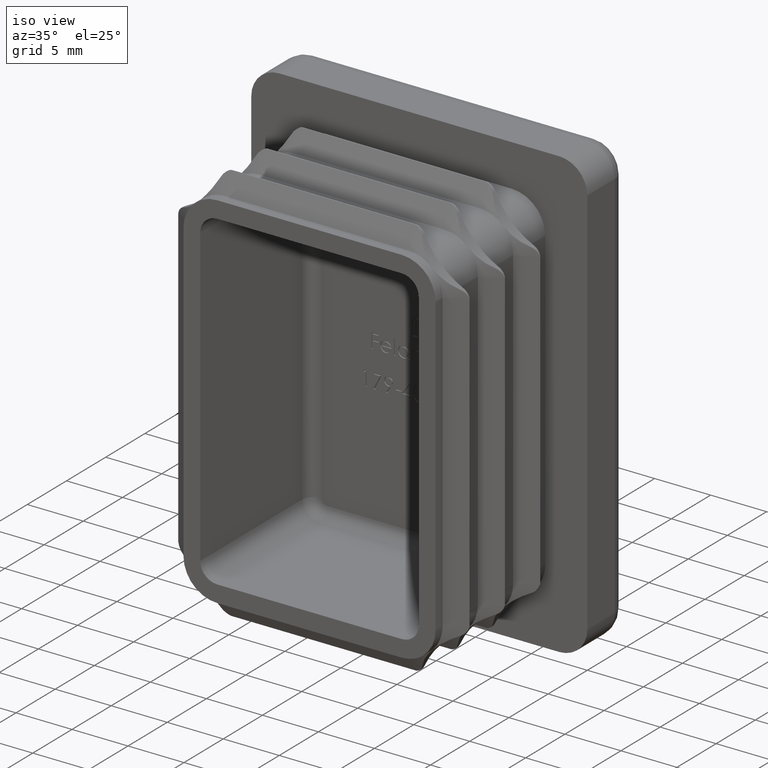
[diagram: clean part render]
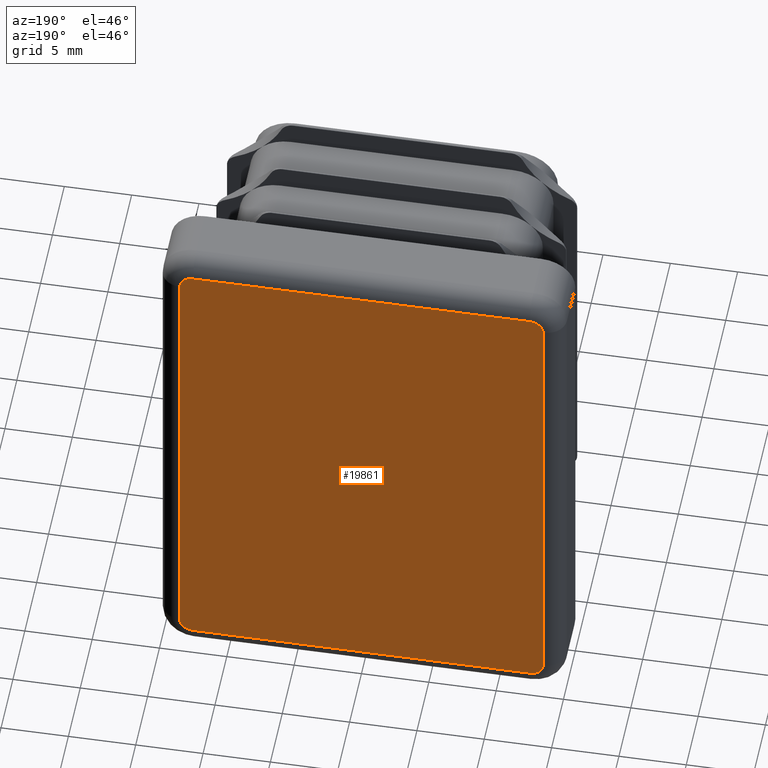
[diagram: tour spotlight — one face highlighted and labeled with its STEP entity id]
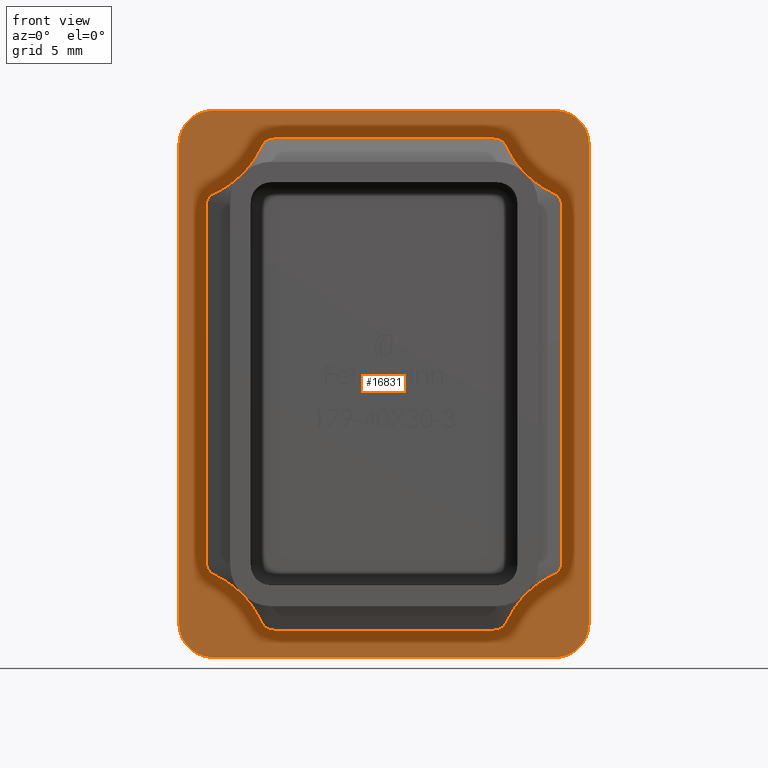
[diagram: tour spotlight — one face highlighted and labeled with its STEP entity id]
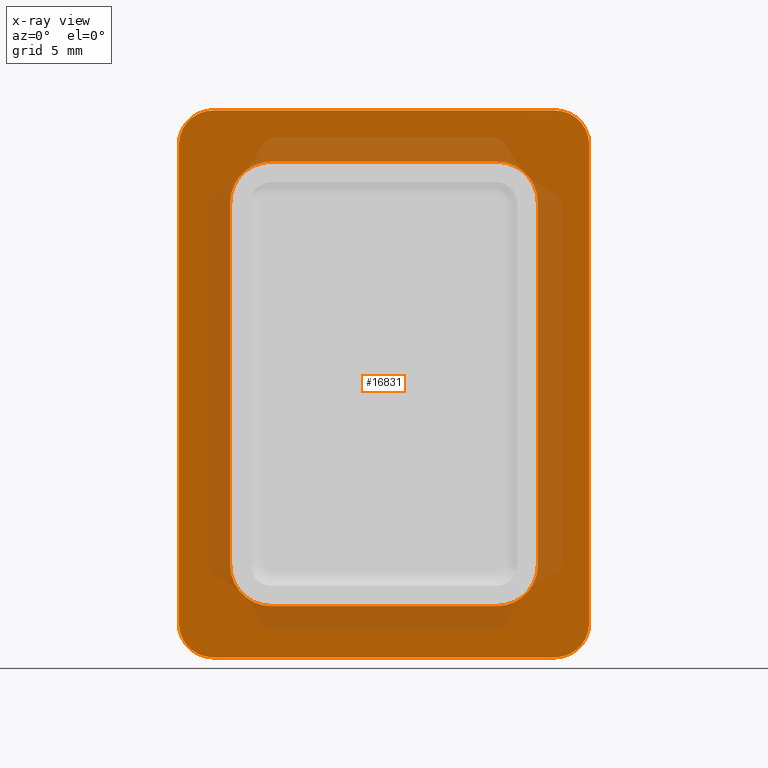
[diagram: x-ray of the same camera — body ghosted, this tour face saturated]
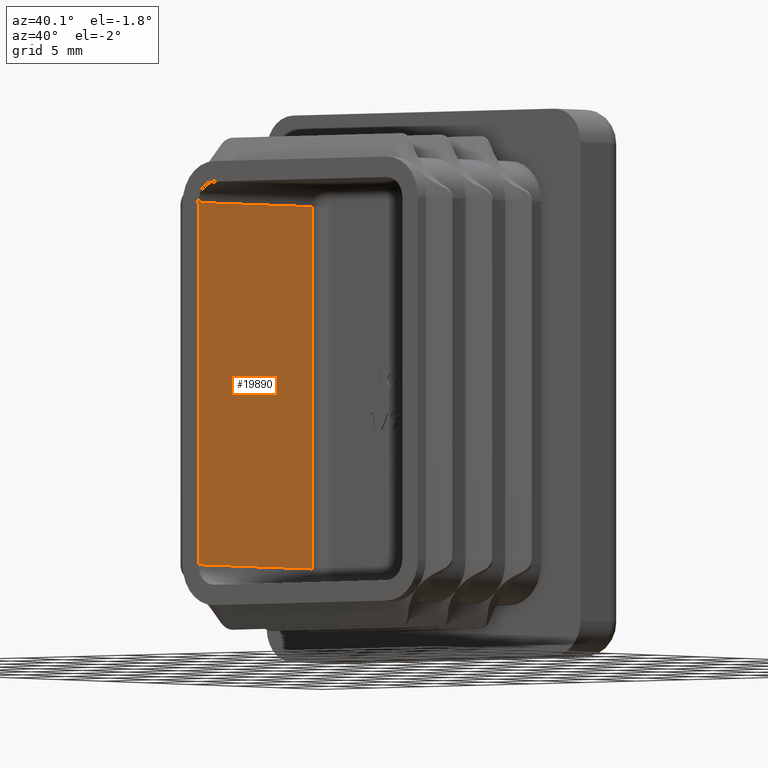
[diagram: tour spotlight — one face highlighted and labeled with its STEP entity id]
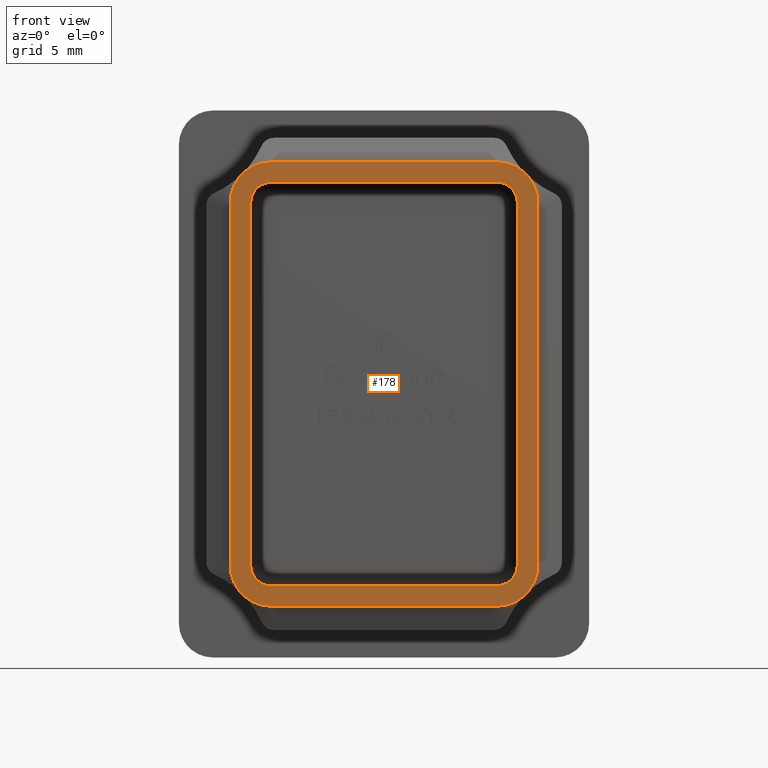
[diagram: tour spotlight — one face highlighted and labeled with its STEP entity id]
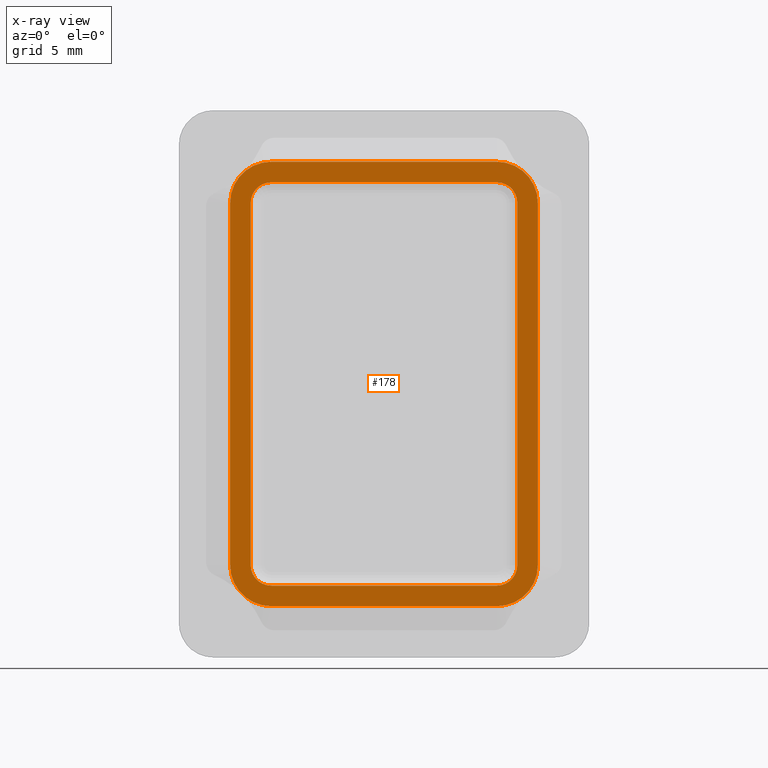
[diagram: x-ray of the same camera — body ghosted, this tour face saturated]
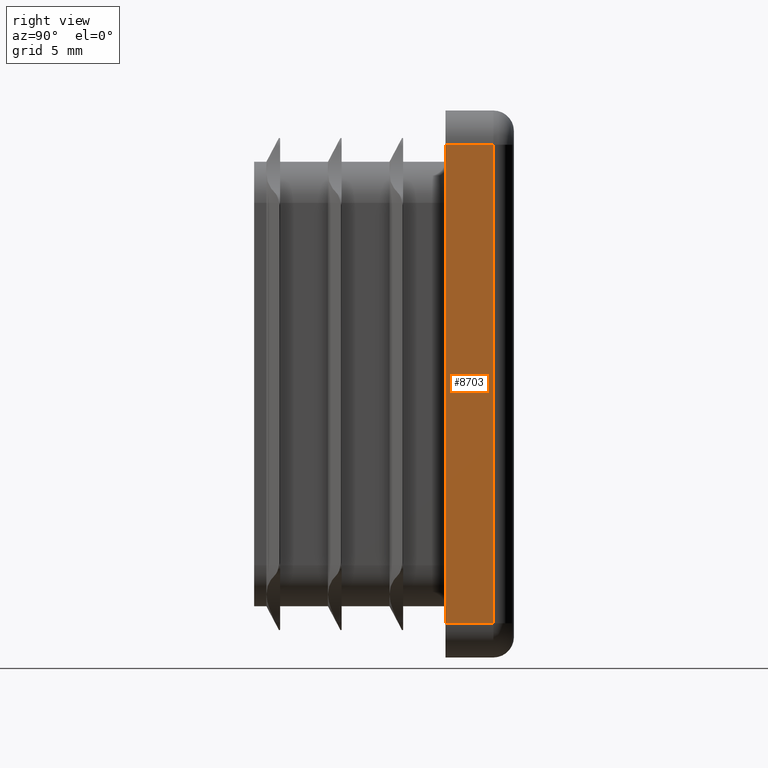
[diagram: tour spotlight — one face highlighted and labeled with its STEP entity id]
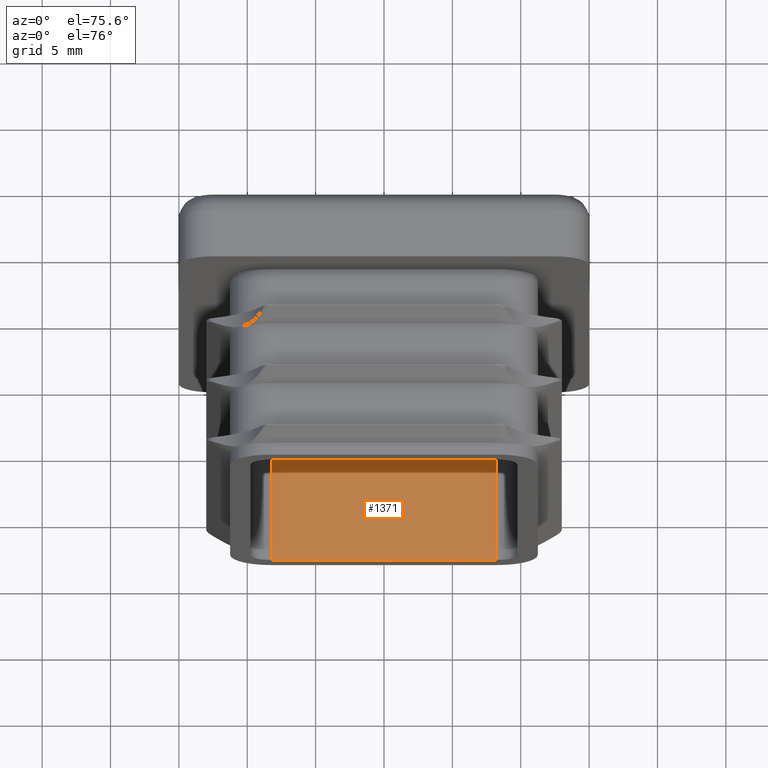
[diagram: tour spotlight — one face highlighted and labeled with its STEP entity id]
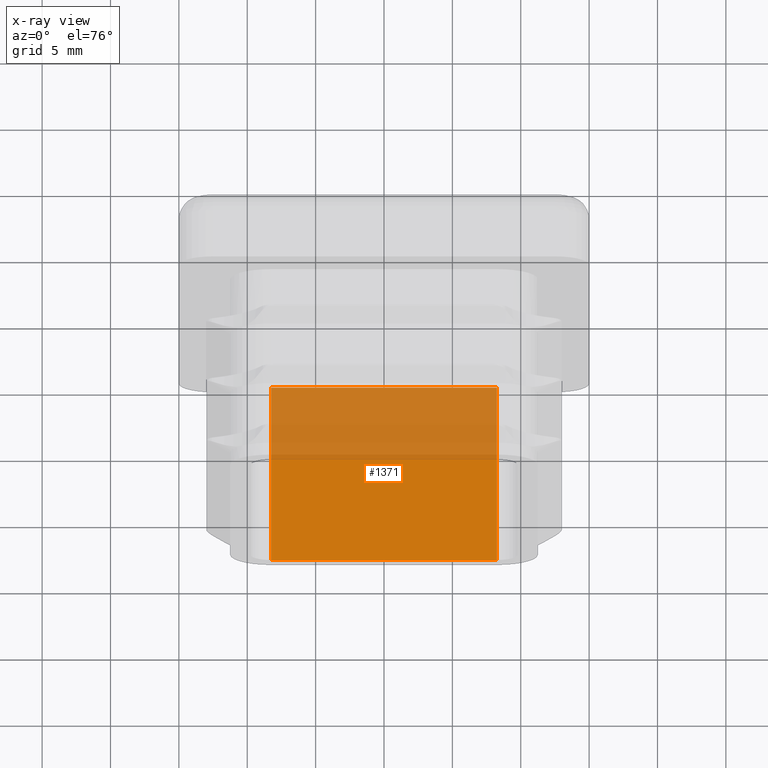
[diagram: x-ray of the same camera — body ghosted, this tour face saturated]
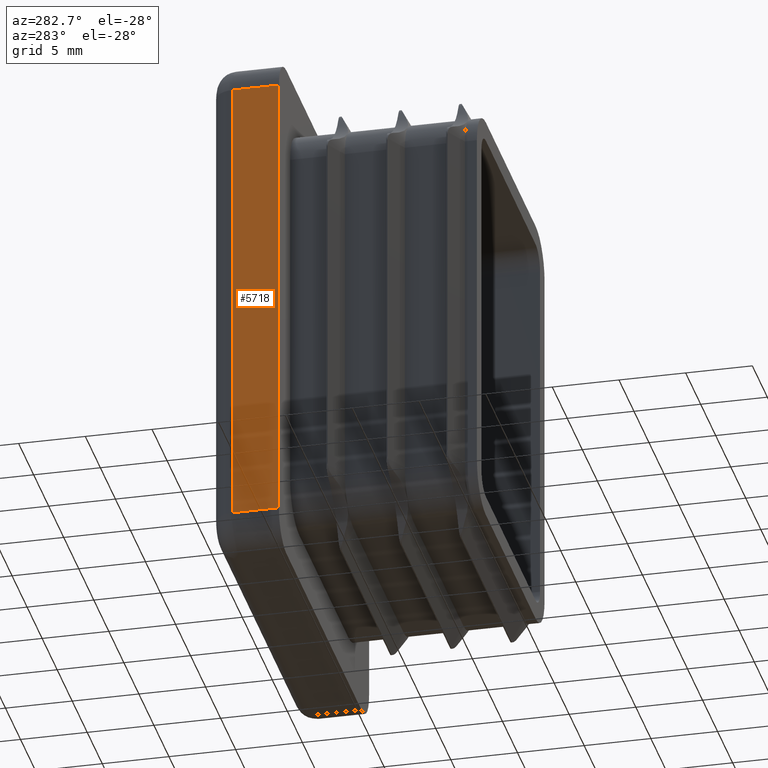
[diagram: tour spotlight — one face highlighted and labeled with its STEP entity id]
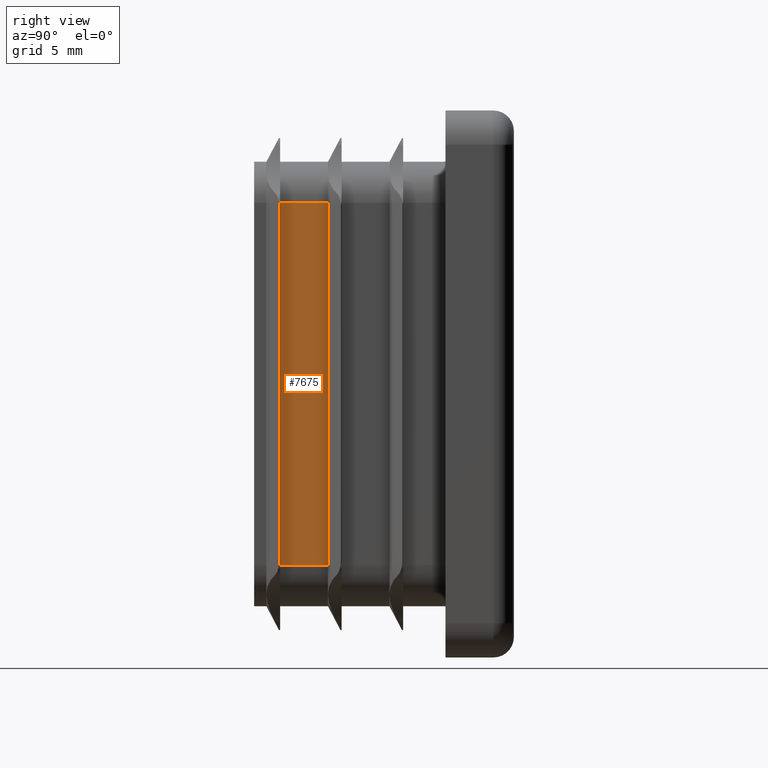
[diagram: tour spotlight — one face highlighted and labeled with its STEP entity id]
A machine part: a face-by-face anatomy tour. The part has 523 B-rep faces; the first image is the clean iso view, then the 8 largest visible faces are spotlighted one at a time (largest first), each with its STEP entity span.

Face 1 — auxiliary view, entity #19861. In plain terms, the highlighted planar face has unit normal (0, 1, 0).
Definition (entity closure, byte-faithful):
#1 = DIRECTION ( 'NONE',  ( 0.000000000000000000, 1.000000000000000000, 0.000000000000000000 ) ) ;
#540 = CARTESIAN_POINT ( 'NONE',  ( 12.50000000000000000, 5.000000000000000000, 18.49999999999999645 ) ) ;
#621 = DIRECTION ( 'NONE',  ( 1.000000000000000000, -0.000000000000000000, 0.000000000000000000 ) ) ;
#651 = EDGE_CURVE ( 'NONE', #7375, #3930, #12014, .T. ) ;
#816 = CIRCLE ( 'NONE', #965, 1.000000000000000888 ) ;
#853 = DIRECTION ( 'NONE',  ( -1.000000000000000000, 0.000000000000000000, 0.000000000000000000 ) ) ;
#965 = AXIS2_PLACEMENT_3D ( 'NONE', #9969, #13463, #1395 ) ;
#1092 = LINE ( 'NONE', #8389, #15255 ) ;
#1352 = EDGE_CURVE ( 'NONE', #5231, #21619, #1092, .T. ) ;
#1395 = DIRECTION ( 'NONE',  ( 0.000000000000000000, 0.000000000000000000, 1.000000000000000000 ) ) ;
#1512 = CARTESIAN_POINT ( 'NONE',  ( 13.49999999999999822, 5.000000000000000000, -17.50000000000000355 ) ) ;
#1705 = ORIENTED_EDGE ( 'NONE', *, *, #21895, .T. ) ;
#2196 = CIRCLE ( 'NONE', #18944, 1.000000000000000888 ) ;
#2275 = AXIS2_PLACEMENT_3D ( 'NONE', #6990, #15573, #6823 ) ;
#2725 = AXIS2_PLACEMENT_3D ( 'NONE', #9287, #17734, #16134 ) ;
#2733 = LINE ( 'NONE', #5586, #8808 ) ;
#2924 = CARTESIAN_POINT ( 'NONE',  ( 13.50000000000000355, 5.000000000000000000, 17.50000000000000000 ) ) ;
#3051 = EDGE_CURVE ( 'NONE', #7011, #14594, #2733, .T. ) ;
#3930 = VERTEX_POINT ( 'NONE', #14220 ) ;
#5186 = EDGE_LOOP ( 'NONE', ( #7116, #16689, #14274, #7224, #6423, #7875, #13434, #1705 ) ) ;
#5231 = VERTEX_POINT ( 'NONE', #17944 ) ;
#5586 = CARTESIAN_POINT ( 'NONE',  ( 13.49999999999999822, 5.000000000000000000, -17.50000000000000355 ) ) ;
#5875 = VERTEX_POINT ( 'NONE', #18797 ) ;
#6423 = ORIENTED_EDGE ( 'NONE', *, *, #651, .T. ) ;
#6590 = CARTESIAN_POINT ( 'NONE',  ( -13.50000000000000000, 5.000000000000000000, 17.49999999999999645 ) ) ;
#6823 = DIRECTION ( 'NONE',  ( 0.000000000000000000, 0.000000000000000000, 1.000000000000000000 ) ) ;
#6990 = CARTESIAN_POINT ( 'NONE',  ( 12.49999999999999289, 5.000000000000000000, -17.50000000000000355 ) ) ;
#7011 = VERTEX_POINT ( 'NONE', #2924 ) ;
#7116 = ORIENTED_EDGE ( 'NONE', *, *, #8199, .T. ) ;
#7224 = ORIENTED_EDGE ( 'NONE', *, *, #10757, .T. ) ;
#7375 = VERTEX_POINT ( 'NONE', #12579 ) ;
#7553 = PLANE ( 'NONE',  #2725 ) ;
#7853 = CIRCLE ( 'NONE', #2275, 1.000000000000000888 ) ;
#7875 = ORIENTED_EDGE ( 'NONE', *, *, #7903, .T. ) ;
#7903 = EDGE_CURVE ( 'NONE', #3930, #5231, #816, .T. ) ;
#7970 = EDGE_CURVE ( 'NONE', #5875, #7011, #20157, .T. ) ;
#8199 = EDGE_CURVE ( 'NONE', #9649, #5875, #17718, .T. ) ;
#8389 = CARTESIAN_POINT ( 'NONE',  ( -13.50000000000000000, 5.000000000000000000, 17.50000000000000000 ) ) ;
#8808 = VECTOR ( 'NONE', #17689, 1000.000000000000000 ) ;
#9287 = CARTESIAN_POINT ( 'NONE',  ( 0.000000000000000000, 5.000000000000000000, 0.000000000000000000 ) ) ;
#9649 = VERTEX_POINT ( 'NONE', #10183 ) ;
#9969 = CARTESIAN_POINT ( 'NONE',  ( -12.50000000000000178, 5.000000000000000000, -17.50000000000000355 ) ) ;
#10107 = VECTOR ( 'NONE', #853, 1000.000000000000000 ) ;
#10183 = CARTESIAN_POINT ( 'NONE',  ( -12.49999999999999822, 5.000000000000000000, 18.50000000000000000 ) ) ;
#10757 = EDGE_CURVE ( 'NONE', #14594, #7375, #7853, .T. ) ;
#12014 = LINE ( 'NONE', #21633, #10107 ) ;
#12579 = CARTESIAN_POINT ( 'NONE',  ( 12.49999999999999289, 5.000000000000000000, -18.50000000000000711 ) ) ;
#13434 = ORIENTED_EDGE ( 'NONE', *, *, #1352, .T. ) ;
#13463 = DIRECTION ( 'NONE',  ( 0.000000000000000000, 1.000000000000000000, 0.000000000000000000 ) ) ;
#13770 = DIRECTION ( 'NONE',  ( 0.000000000000000000, 1.000000000000000000, 0.000000000000000000 ) ) ;
#14181 = VECTOR ( 'NONE', #621, 1000.000000000000000 ) ;
#14220 = CARTESIAN_POINT ( 'NONE',  ( -12.50000000000000178, 5.000000000000000000, -18.50000000000000355 ) ) ;
#14274 = ORIENTED_EDGE ( 'NONE', *, *, #3051, .T. ) ;
#14283 = DIRECTION ( 'NONE',  ( 0.000000000000000000, 0.000000000000000000, 1.000000000000000000 ) ) ;
#14594 = VERTEX_POINT ( 'NONE', #1512 ) ;
#15255 = VECTOR ( 'NONE', #19014, 1000.000000000000000 ) ;
#15573 = DIRECTION ( 'NONE',  ( 0.000000000000000000, 1.000000000000000000, 0.000000000000000000 ) ) ;
#16134 = DIRECTION ( 'NONE',  ( 0.000000000000000000, -0.000000000000000000, 1.000000000000000000 ) ) ;
#16689 = ORIENTED_EDGE ( 'NONE', *, *, #7970, .T. ) ;
#17440 = AXIS2_PLACEMENT_3D ( 'NONE', #20892, #13770, #18998 ) ;
#17689 = DIRECTION ( 'NONE',  ( -1.301042606982605321E-16, 0.000000000000000000, -1.000000000000000000 ) ) ;
#17718 = LINE ( 'NONE', #540, #14181 ) ;
#17734 = DIRECTION ( 'NONE',  ( 0.000000000000000000, 1.000000000000000000, 0.000000000000000000 ) ) ;
#17944 = CARTESIAN_POINT ( 'NONE',  ( -13.50000000000000355, 5.000000000000000000, -17.50000000000000355 ) ) ;
#18797 = CARTESIAN_POINT ( 'NONE',  ( 12.50000000000000000, 5.000000000000000000, 18.49999999999999645 ) ) ;
#18944 = AXIS2_PLACEMENT_3D ( 'NONE', #19423, #1, #14283 ) ;
#18998 = DIRECTION ( 'NONE',  ( 0.000000000000000000, 0.000000000000000000, 1.000000000000000000 ) ) ;
#19014 = DIRECTION ( 'NONE',  ( 8.673617379884035472E-17, -0.000000000000000000, 1.000000000000000000 ) ) ;
#19423 = CARTESIAN_POINT ( 'NONE',  ( -12.49999999999999822, 5.000000000000000000, 17.49999999999999645 ) ) ;
#19861 = ADVANCED_FACE ( 'NONE', ( #20211 ), #7553, .T. ) ;
#20157 = CIRCLE ( 'NONE', #17440, 1.000000000000000888 ) ;
#20211 = FACE_OUTER_BOUND ( 'NONE', #5186, .T. ) ;
#20892 = CARTESIAN_POINT ( 'NONE',  ( 12.50000000000000000, 5.000000000000000000, 17.50000000000000000 ) ) ;
#21619 = VERTEX_POINT ( 'NONE', #6590 ) ;
#21633 = CARTESIAN_POINT ( 'NONE',  ( -12.50000000000000178, 5.000000000000000000, -18.50000000000000355 ) ) ;
#21895 = EDGE_CURVE ( 'NONE', #21619, #9649, #2196, .T. ) ;

Face 2 — front view, entity #16831. An x-ray twin of the same camera follows (body ghosted, this face saturated) — the face is partly hidden behind the body. In plain terms, the highlighted planar face has unit normal (0, 1, 0).
Definition (entity closure, byte-faithful):
#85 = VERTEX_POINT ( 'NONE', #5240 ) ;
#87 = CARTESIAN_POINT ( 'NONE',  ( 12.49999999999999289, 0.000000000000000000, -17.50000000000000355 ) ) ;
#722 = ORIENTED_EDGE ( 'NONE', *, *, #974, .F. ) ;
#882 = CARTESIAN_POINT ( 'NONE',  ( -15.00000000000000355, 0.000000000000000000, -20.00000000000000355 ) ) ;
#974 = EDGE_CURVE ( 'NONE', #1781, #20954, #20698, .T. ) ;
#1089 = CARTESIAN_POINT ( 'NONE',  ( -8.250000000000001776, 0.000000000000000000, 13.25000000000000178 ) ) ;
#1253 = CIRCLE ( 'NONE', #8979, 2.499999999999998668 ) ;
#1439 = CIRCLE ( 'NONE', #18022, 2.500000000000000444 ) ;
#1718 = EDGE_LOOP ( 'NONE', ( #11855, #3969, #722, #13068, #17268, #21249, #9648, #14537 ) ) ;
#1781 = VERTEX_POINT ( 'NONE', #17101 ) ;
#2043 = ORIENTED_EDGE ( 'NONE', *, *, #5091, .T. ) ;
#2225 = CARTESIAN_POINT ( 'NONE',  ( 15.00000000000000178, 0.000000000000000000, 17.50000000000000000 ) ) ;
#2639 = DIRECTION ( 'NONE',  ( 8.673617379884035472E-17, 0.000000000000000000, 1.000000000000000000 ) ) ;
#3213 = VECTOR ( 'NONE', #20957, 1000.000000000000000 ) ;
#3338 = LINE ( 'NONE', #13699, #11831 ) ;
#3581 = CARTESIAN_POINT ( 'NONE',  ( 12.49999999999999289, 0.000000000000000000, -20.00000000000000355 ) ) ;
#3624 = VERTEX_POINT ( 'NONE', #16458 ) ;
#3730 = CARTESIAN_POINT ( 'NONE',  ( -8.249999999999994671, -0.000000000000000000, -13.25000000000000178 ) ) ;
#3806 = AXIS2_PLACEMENT_3D ( 'NONE', #13024, #18432, #20075 ) ;
#3823 = EDGE_CURVE ( 'NONE', #4102, #7179, #3338, .T. ) ;
#3964 = CARTESIAN_POINT ( 'NONE',  ( 11.24999999999999645, 0.000000000000000000, 13.25000000000000355 ) ) ;
#3969 = ORIENTED_EDGE ( 'NONE', *, *, #10930, .F. ) ;
#3987 = CARTESIAN_POINT ( 'NONE',  ( 12.50000000000000000, 0.000000000000000000, 17.50000000000000000 ) ) ;
#4021 = CIRCLE ( 'NONE', #13979, 2.999999999999999112 ) ;
#4102 = VERTEX_POINT ( 'NONE', #2225 ) ;
#4168 = EDGE_CURVE ( 'NONE', #6549, #9590, #11540, .T. ) ;
#4197 = AXIS2_PLACEMENT_3D ( 'NONE', #11468, #18607, #20413 ) ;
#4413 = EDGE_CURVE ( 'NONE', #17681, #16597, #10465, .T. ) ;
#4573 = PLANE ( 'NONE',  #22379 ) ;
#4652 = CARTESIAN_POINT ( 'NONE',  ( 8.249999999999996447, 0.000000000000000000, 13.25000000000000178 ) ) ;
#4660 = ORIENTED_EDGE ( 'NONE', *, *, #4168, .F. ) ;
#4710 = EDGE_CURVE ( 'NONE', #3624, #19290, #17837, .T. ) ;
#5015 = CARTESIAN_POINT ( 'NONE',  ( -8.250000000000001776, 0.000000000000000000, 16.25000000000000000 ) ) ;
#5044 = VERTEX_POINT ( 'NONE', #3581 ) ;
#5091 = EDGE_CURVE ( 'NONE', #5044, #7179, #1439, .T. ) ;
#5240 = CARTESIAN_POINT ( 'NONE',  ( 8.249999999999996447, 0.000000000000000000, 16.25000000000000000 ) ) ;
#5349 = AXIS2_PLACEMENT_3D ( 'NONE', #18114, #11039, #9432 ) ;
#5449 = CARTESIAN_POINT ( 'NONE',  ( -12.49999999999999822, 0.000000000000000000, 19.99999999999999645 ) ) ;
#6175 = EDGE_CURVE ( 'NONE', #3624, #17193, #6877, .T. ) ;
#6323 = CARTESIAN_POINT ( 'NONE',  ( 0.000000000000000000, 0.000000000000000000, 0.000000000000000000 ) ) ;
#6415 = DIRECTION ( 'NONE',  ( 0.000000000000000000, -1.000000000000000000, 0.000000000000000000 ) ) ;
#6549 = VERTEX_POINT ( 'NONE', #5449 ) ;
#6738 = CIRCLE ( 'NONE', #19342, 2.999999999999999112 ) ;
#6877 = LINE ( 'NONE', #882, #13970 ) ;
#7101 = VECTOR ( 'NONE', #20511, 1000.000000000000000 ) ;
#7179 = VERTEX_POINT ( 'NONE', #13524 ) ;
#7497 = ORIENTED_EDGE ( 'NONE', *, *, #22162, .F. ) ;
#7529 = FACE_BOUND ( 'NONE', #1718, .T. ) ;
#7589 = ORIENTED_EDGE ( 'NONE', *, *, #4710, .T. ) ;
#7639 = CARTESIAN_POINT ( 'NONE',  ( -8.249999999999994671, 0.000000000000000000, -16.25000000000000000 ) ) ;
#7837 = EDGE_CURVE ( 'NONE', #85, #21064, #21771, .T. ) ;
#7942 = VERTEX_POINT ( 'NONE', #12168 ) ;
#8979 = AXIS2_PLACEMENT_3D ( 'NONE', #3987, #12521, #10855 ) ;
#9319 = VECTOR ( 'NONE', #17940, 1000.000000000000000 ) ;
#9432 = DIRECTION ( 'NONE',  ( 0.000000000000000000, 0.000000000000000000, -1.000000000000000000 ) ) ;
#9524 = LINE ( 'NONE', #17252, #3213 ) ;
#9590 = VERTEX_POINT ( 'NONE', #20660 ) ;
#9648 = ORIENTED_EDGE ( 'NONE', *, *, #11803, .F. ) ;
#9750 = VECTOR ( 'NONE', #19111, 1000.000000000000000 ) ;
#9799 = EDGE_CURVE ( 'NONE', #16597, #7942, #9524, .T. ) ;
#10017 = ORIENTED_EDGE ( 'NONE', *, *, #3823, .F. ) ;
#10122 = DIRECTION ( 'NONE',  ( -1.301042606982605321E-16, -0.000000000000000000, -1.000000000000000000 ) ) ;
#10186 = VECTOR ( 'NONE', #14919, 1000.000000000000000 ) ;
#10465 = CIRCLE ( 'NONE', #14361, 2.999999999999999112 ) ;
#10768 = DIRECTION ( 'NONE',  ( 0.000000000000000000, 0.000000000000000000, 1.000000000000000000 ) ) ;
#10855 = DIRECTION ( 'NONE',  ( 0.000000000000000000, 0.000000000000000000, 1.000000000000000000 ) ) ;
#10930 = EDGE_CURVE ( 'NONE', #20954, #85, #4021, .T. ) ;
#11039 = DIRECTION ( 'NONE',  ( 0.000000000000000000, -1.000000000000000000, 0.000000000000000000 ) ) ;
#11468 = CARTESIAN_POINT ( 'NONE',  ( -12.49999999999999822, 0.000000000000000000, 17.49999999999999645 ) ) ;
#11540 = LINE ( 'NONE', #21867, #10186 ) ;
#11620 = DIRECTION ( 'NONE',  ( 0.000000000000000000, 0.000000000000000000, 1.000000000000000000 ) ) ;
#11639 = EDGE_CURVE ( 'NONE', #21064, #17551, #6738, .T. ) ;
#11665 = EDGE_CURVE ( 'NONE', #6549, #17193, #14930, .T. ) ;
#11803 = EDGE_CURVE ( 'NONE', #17551, #17681, #18713, .T. ) ;
#11831 = VECTOR ( 'NONE', #10122, 1000.000000000000000 ) ;
#11855 = ORIENTED_EDGE ( 'NONE', *, *, #7837, .F. ) ;
#11996 = CARTESIAN_POINT ( 'NONE',  ( -11.25000000000000533, 0.000000000000000000, 13.25000000000000178 ) ) ;
#12168 = CARTESIAN_POINT ( 'NONE',  ( 8.250000000000003553, 0.000000000000000000, -16.25000000000000000 ) ) ;
#12224 = CARTESIAN_POINT ( 'NONE',  ( -11.24999999999999645, 0.000000000000000000, -13.25000000000000533 ) ) ;
#12521 = DIRECTION ( 'NONE',  ( -0.000000000000000000, -1.000000000000000000, -0.000000000000000000 ) ) ;
#12880 = CARTESIAN_POINT ( 'NONE',  ( 11.24999999999999645, 0.000000000000000000, 13.25000000000000355 ) ) ;
#13024 = CARTESIAN_POINT ( 'NONE',  ( -12.50000000000000178, 0.000000000000000000, -17.50000000000000355 ) ) ;
#13068 = ORIENTED_EDGE ( 'NONE', *, *, #17155, .F. ) ;
#13330 = CARTESIAN_POINT ( 'NONE',  ( -8.250000000000001776, 0.000000000000000000, 16.25000000000000000 ) ) ;
#13524 = CARTESIAN_POINT ( 'NONE',  ( 14.99999999999999645, 0.000000000000000000, -17.50000000000000355 ) ) ;
#13699 = CARTESIAN_POINT ( 'NONE',  ( 14.99999999999999645, 0.000000000000000000, -20.00000000000000355 ) ) ;
#13970 = VECTOR ( 'NONE', #2639, 1000.000000000000000 ) ;
#13979 = AXIS2_PLACEMENT_3D ( 'NONE', #4652, #6415, #18584 ) ;
#14348 = ORIENTED_EDGE ( 'NONE', *, *, #16119, .T. ) ;
#14361 = AXIS2_PLACEMENT_3D ( 'NONE', #3730, #15938, #10768 ) ;
#14537 = ORIENTED_EDGE ( 'NONE', *, *, #11639, .F. ) ;
#14919 = DIRECTION ( 'NONE',  ( 1.000000000000000000, 0.000000000000000000, 0.000000000000000000 ) ) ;
#14930 = CIRCLE ( 'NONE', #4197, 2.499999999999998668 ) ;
#15791 = DIRECTION ( 'NONE',  ( -0.000000000000000000, -1.000000000000000000, -0.000000000000000000 ) ) ;
#15821 = VECTOR ( 'NONE', #16153, 1000.000000000000000 ) ;
#15938 = DIRECTION ( 'NONE',  ( 0.000000000000000000, -1.000000000000000000, 0.000000000000000000 ) ) ;
#15961 = FACE_OUTER_BOUND ( 'NONE', #18369, .T. ) ;
#16119 = EDGE_CURVE ( 'NONE', #4102, #9590, #1253, .T. ) ;
#16153 = DIRECTION ( 'NONE',  ( -3.927675794664468391E-16, -0.000000000000000000, 1.000000000000000000 ) ) ;
#16177 = CARTESIAN_POINT ( 'NONE',  ( -15.00000000000000355, 0.000000000000000000, -20.00000000000000355 ) ) ;
#16458 = CARTESIAN_POINT ( 'NONE',  ( -15.00000000000000355, 0.000000000000000000, -17.50000000000000355 ) ) ;
#16508 = CIRCLE ( 'NONE', #5349, 2.999999999999999112 ) ;
#16521 = ORIENTED_EDGE ( 'NONE', *, *, #6175, .F. ) ;
#16597 = VERTEX_POINT ( 'NONE', #7639 ) ;
#16831 = ADVANCED_FACE ( 'NONE', ( #7529, #15961 ), #4573, .F. ) ;
#17101 = CARTESIAN_POINT ( 'NONE',  ( 11.25000000000000711, 0.000000000000000000, -13.25000000000000000 ) ) ;
#17121 = DIRECTION ( 'NONE',  ( 0.000000000000000000, 1.000000000000000000, 0.000000000000000000 ) ) ;
#17155 = EDGE_CURVE ( 'NONE', #7942, #1781, #16508, .T. ) ;
#17193 = VERTEX_POINT ( 'NONE', #17959 ) ;
#17252 = CARTESIAN_POINT ( 'NONE',  ( -8.249999999999994671, -0.000000000000000000, -16.25000000000000000 ) ) ;
#17268 = ORIENTED_EDGE ( 'NONE', *, *, #9799, .F. ) ;
#17551 = VERTEX_POINT ( 'NONE', #11996 ) ;
#17681 = VERTEX_POINT ( 'NONE', #12224 ) ;
#17837 = CIRCLE ( 'NONE', #3806, 2.500000000000000444 ) ;
#17940 = DIRECTION ( 'NONE',  ( -1.000000000000000000, -0.000000000000000000, -0.000000000000000000 ) ) ;
#17959 = CARTESIAN_POINT ( 'NONE',  ( -15.00000000000000000, 0.000000000000000000, 17.50000000000000000 ) ) ;
#18022 = AXIS2_PLACEMENT_3D ( 'NONE', #87, #15791, #19281 ) ;
#18114 = CARTESIAN_POINT ( 'NONE',  ( 8.250000000000003553, 0.000000000000000000, -13.25000000000000178 ) ) ;
#18369 = EDGE_LOOP ( 'NONE', ( #7497, #2043, #10017, #14348, #4660, #19214, #16521, #7589 ) ) ;
#18432 = DIRECTION ( 'NONE',  ( -0.000000000000000000, -1.000000000000000000, -0.000000000000000000 ) ) ;
#18584 = DIRECTION ( 'NONE',  ( 0.000000000000000000, 0.000000000000000000, 1.000000000000000000 ) ) ;
#18607 = DIRECTION ( 'NONE',  ( -0.000000000000000000, -1.000000000000000000, -0.000000000000000000 ) ) ;
#18713 = LINE ( 'NONE', #22459, #9750 ) ;
#19111 = DIRECTION ( 'NONE',  ( 3.273063162220390326E-16, -0.000000000000000000, -1.000000000000000000 ) ) ;
#19214 = ORIENTED_EDGE ( 'NONE', *, *, #11665, .T. ) ;
#19281 = DIRECTION ( 'NONE',  ( 0.000000000000000000, 0.000000000000000000, 1.000000000000000000 ) ) ;
#19290 = VERTEX_POINT ( 'NONE', #21190 ) ;
#19342 = AXIS2_PLACEMENT_3D ( 'NONE', #1089, #22008, #11620 ) ;
#20075 = DIRECTION ( 'NONE',  ( 0.000000000000000000, 0.000000000000000000, 1.000000000000000000 ) ) ;
#20193 = LINE ( 'NONE', #16177, #9319 ) ;
#20413 = DIRECTION ( 'NONE',  ( 0.000000000000000000, 0.000000000000000000, 1.000000000000000000 ) ) ;
#20511 = DIRECTION ( 'NONE',  ( -1.000000000000000000, -0.000000000000000000, -0.000000000000000000 ) ) ;
#20660 = CARTESIAN_POINT ( 'NONE',  ( 12.50000000000000000, 0.000000000000000000, 19.99999999999999645 ) ) ;
#20698 = LINE ( 'NONE', #3964, #15821 ) ;
#20954 = VERTEX_POINT ( 'NONE', #12880 ) ;
#20957 = DIRECTION ( 'NONE',  ( 1.000000000000000000, 0.000000000000000000, 0.000000000000000000 ) ) ;
#21064 = VERTEX_POINT ( 'NONE', #5015 ) ;
#21190 = CARTESIAN_POINT ( 'NONE',  ( -12.50000000000000178, 0.000000000000000000, -20.00000000000000355 ) ) ;
#21249 = ORIENTED_EDGE ( 'NONE', *, *, #4413, .F. ) ;
#21771 = LINE ( 'NONE', #13330, #7101 ) ;
#21867 = CARTESIAN_POINT ( 'NONE',  ( -15.00000000000000000, 0.000000000000000000, 19.99999999999999645 ) ) ;
#22008 = DIRECTION ( 'NONE',  ( 0.000000000000000000, -1.000000000000000000, 0.000000000000000000 ) ) ;
#22162 = EDGE_CURVE ( 'NONE', #5044, #19290, #20193, .T. ) ;
#22338 = DIRECTION ( 'NONE',  ( 0.000000000000000000, -0.000000000000000000, 1.000000000000000000 ) ) ;
#22379 = AXIS2_PLACEMENT_3D ( 'NONE', #6323, #17121, #22338 ) ;
#22459 = CARTESIAN_POINT ( 'NONE',  ( -11.25000000000000533, 0.000000000000000000, 13.25000000000000178 ) ) ;

Face 3 — auxiliary view, entity #19890. In plain terms, the highlighted planar face has unit normal (1, 0, 0).
Definition (entity closure, byte-faithful):
#747 = CARTESIAN_POINT ( 'NONE',  ( -9.750000000000003553, -14.00000000000000000, 13.25000000000000178 ) ) ;
#979 = VECTOR ( 'NONE', #12650, 1000.000000000000000 ) ;
#1616 = EDGE_CURVE ( 'NONE', #19943, #10396, #15513, .T. ) ;
#2470 = VECTOR ( 'NONE', #16716, 1000.000000000000000 ) ;
#2567 = PLANE ( 'NONE',  #17471 ) ;
#2646 = DIRECTION ( 'NONE',  ( 3.273063162220390819E-16, 0.000000000000000000, -1.000000000000000000 ) ) ;
#3409 = CARTESIAN_POINT ( 'NONE',  ( -9.750000000000003553, -0.9999999999999991118, 13.25000000000000178 ) ) ;
#4333 = DIRECTION ( 'NONE',  ( 1.000000000000000000, 0.000000000000000000, 3.273063162220390819E-16 ) ) ;
#4722 = LINE ( 'NONE', #13733, #13993 ) ;
#5171 = VERTEX_POINT ( 'NONE', #5835 ) ;
#5616 = EDGE_LOOP ( 'NONE', ( #18692, #12073, #20238, #21052 ) ) ;
#5624 = EDGE_CURVE ( 'NONE', #8826, #19943, #4722, .T. ) ;
#5835 = CARTESIAN_POINT ( 'NONE',  ( -9.750000000000003553, -14.00000000000000000, 13.25000000000000178 ) ) ;
#5865 = CARTESIAN_POINT ( 'NONE',  ( -9.750000000000003553, -0.9999999999999991118, 13.25000000000000178 ) ) ;
#6750 = EDGE_CURVE ( 'NONE', #5171, #8826, #8761, .T. ) ;
#8761 = LINE ( 'NONE', #11532, #2470 ) ;
#8826 = VERTEX_POINT ( 'NONE', #11382 ) ;
#9001 = DIRECTION ( 'NONE',  ( -0.000000000000000000, 1.000000000000000000, -0.000000000000000000 ) ) ;
#9159 = LINE ( 'NONE', #747, #979 ) ;
#10396 = VERTEX_POINT ( 'NONE', #3409 ) ;
#11382 = CARTESIAN_POINT ( 'NONE',  ( -9.749999999999994671, -14.00000000000000000, -13.25000000000000178 ) ) ;
#11532 = CARTESIAN_POINT ( 'NONE',  ( -9.750000000000003553, -14.00000000000000000, 13.25000000000000178 ) ) ;
#12073 = ORIENTED_EDGE ( 'NONE', *, *, #1616, .T. ) ;
#12650 = DIRECTION ( 'NONE',  ( -0.000000000000000000, 1.000000000000000000, -0.000000000000000000 ) ) ;
#13733 = CARTESIAN_POINT ( 'NONE',  ( -9.749999999999994671, -14.00000000000000000, -13.25000000000000178 ) ) ;
#13993 = VECTOR ( 'NONE', #9001, 1000.000000000000000 ) ;
#15513 = LINE ( 'NONE', #5865, #17422 ) ;
#15585 = FACE_OUTER_BOUND ( 'NONE', #5616, .T. ) ;
#16360 = DIRECTION ( 'NONE',  ( -3.273063162220390819E-16, -0.000000000000000000, 1.000000000000000000 ) ) ;
#16372 = CARTESIAN_POINT ( 'NONE',  ( -9.750000000000003553, -14.00000000000000000, 13.25000000000000178 ) ) ;
#16670 = EDGE_CURVE ( 'NONE', #5171, #10396, #9159, .T. ) ;
#16716 = DIRECTION ( 'NONE',  ( 3.273063162220390326E-16, -0.000000000000000000, -1.000000000000000000 ) ) ;
#17422 = VECTOR ( 'NONE', #16360, 1000.000000000000000 ) ;
#17471 = AXIS2_PLACEMENT_3D ( 'NONE', #16372, #4333, #2646 ) ;
#18354 = CARTESIAN_POINT ( 'NONE',  ( -9.749999999999994671, -0.9999999999999991118, -13.25000000000000178 ) ) ;
#18692 = ORIENTED_EDGE ( 'NONE', *, *, #5624, .T. ) ;
#19890 = ADVANCED_FACE ( 'NONE', ( #15585 ), #2567, .T. ) ;
#19943 = VERTEX_POINT ( 'NONE', #18354 ) ;
#20238 = ORIENTED_EDGE ( 'NONE', *, *, #16670, .F. ) ;
#21052 = ORIENTED_EDGE ( 'NONE', *, *, #6750, .T. ) ;

Face 4 — front view, entity #178. An x-ray twin of the same camera follows (body ghosted, this face saturated) — the face is partly hidden behind the body. In plain terms, the highlighted planar face has unit normal (0, -1, 0).
Definition (entity closure, byte-faithful):
#178 = ADVANCED_FACE ( 'NONE', ( #524, #15252 ), #7535, .T. ) ;
#381 = ORIENTED_EDGE ( 'NONE', *, *, #12303, .F. ) ;
#524 = FACE_OUTER_BOUND ( 'NONE', #5389, .T. ) ;
#546 = ORIENTED_EDGE ( 'NONE', *, *, #14369, .T. ) ;
#577 = LINE ( 'NONE', #4932, #11241 ) ;
#580 = EDGE_CURVE ( 'NONE', #15662, #5171, #20161, .T. ) ;
#652 = ORIENTED_EDGE ( 'NONE', *, *, #16050, .F. ) ;
#724 = DIRECTION ( 'NONE',  ( -1.000000000000000000, -0.000000000000000000, -0.000000000000000000 ) ) ;
#875 = CARTESIAN_POINT ( 'NONE',  ( -8.250000000000001776, -14.00000000000000000, 14.75000000000000178 ) ) ;
#1158 = CARTESIAN_POINT ( 'NONE',  ( 8.249999999999996447, -14.00000000000000000, 16.25000000000000000 ) ) ;
#1166 = AXIS2_PLACEMENT_3D ( 'NONE', #4376, #14363, #11323 ) ;
#1357 = VECTOR ( 'NONE', #10477, 1000.000000000000000 ) ;
#1478 = CARTESIAN_POINT ( 'NONE',  ( -8.249999999999994671, -14.00000000000000000, -16.25000000000000000 ) ) ;
#1641 = VERTEX_POINT ( 'NONE', #14619 ) ;
#1795 = DIRECTION ( 'NONE',  ( 0.000000000000000000, 0.000000000000000000, 1.000000000000000000 ) ) ;
#1928 = CIRCLE ( 'NONE', #4933, 2.999999999999999112 ) ;
#2060 = DIRECTION ( 'NONE',  ( 0.000000000000000000, -1.000000000000000000, 0.000000000000000000 ) ) ;
#2470 = VECTOR ( 'NONE', #16716, 1000.000000000000000 ) ;
#2528 = CARTESIAN_POINT ( 'NONE',  ( -8.249999999999994671, -14.00000000000000000, -16.25000000000000000 ) ) ;
#2648 = DIRECTION ( 'NONE',  ( 0.000000000000000000, -1.000000000000000000, 0.000000000000000000 ) ) ;
#2797 = EDGE_CURVE ( 'NONE', #18315, #19686, #4443, .T. ) ;
#3322 = DIRECTION ( 'NONE',  ( 0.000000000000000000, -1.000000000000000000, 0.000000000000000000 ) ) ;
#3452 = ORIENTED_EDGE ( 'NONE', *, *, #21763, .T. ) ;
#3627 = CARTESIAN_POINT ( 'NONE',  ( 9.750000000000005329, -14.00000000000000000, -13.25000000000000178 ) ) ;
#3681 = ORIENTED_EDGE ( 'NONE', *, *, #10858, .T. ) ;
#3690 = LINE ( 'NONE', #21734, #19494 ) ;
#3708 = LINE ( 'NONE', #20843, #12465 ) ;
#3955 = ORIENTED_EDGE ( 'NONE', *, *, #20049, .F. ) ;
#4376 = CARTESIAN_POINT ( 'NONE',  ( -8.250000000000001776, -14.00000000000000000, 13.25000000000000178 ) ) ;
#4441 = LINE ( 'NONE', #6583, #4581 ) ;
#4443 = CIRCLE ( 'NONE', #8943, 1.500000000000001332 ) ;
#4567 = DIRECTION ( 'NONE',  ( -3.927675794664468391E-16, -0.000000000000000000, 1.000000000000000000 ) ) ;
#4581 = VECTOR ( 'NONE', #22243, 1000.000000000000000 ) ;
#4661 = ORIENTED_EDGE ( 'NONE', *, *, #21519, .F. ) ;
#4859 = VERTEX_POINT ( 'NONE', #9883 ) ;
#4932 = CARTESIAN_POINT ( 'NONE',  ( -8.249999999999994671, -14.00000000000000000, -14.75000000000000178 ) ) ;
#4933 = AXIS2_PLACEMENT_3D ( 'NONE', #5439, #10773, #10470 ) ;
#5171 = VERTEX_POINT ( 'NONE', #5835 ) ;
#5174 = AXIS2_PLACEMENT_3D ( 'NONE', #7024, #17442, #17381 ) ;
#5274 = ORIENTED_EDGE ( 'NONE', *, *, #580, .F. ) ;
#5389 = EDGE_LOOP ( 'NONE', ( #15106, #7490, #6903, #18571, #546, #9520, #3452, #3681 ) ) ;
#5439 = CARTESIAN_POINT ( 'NONE',  ( -8.249999999999994671, -14.00000000000000000, -13.25000000000000178 ) ) ;
#5671 = CARTESIAN_POINT ( 'NONE',  ( -8.249999999999994671, -14.00000000000000000, -13.25000000000000178 ) ) ;
#5686 = ORIENTED_EDGE ( 'NONE', *, *, #2797, .F. ) ;
#5835 = CARTESIAN_POINT ( 'NONE',  ( -9.750000000000003553, -14.00000000000000000, 13.25000000000000178 ) ) ;
#5943 = EDGE_CURVE ( 'NONE', #7511, #8299, #8781, .T. ) ;
#6185 = CARTESIAN_POINT ( 'NONE',  ( 8.250000000000003553, -14.00000000000000000, -14.75000000000000355 ) ) ;
#6191 = CIRCLE ( 'NONE', #17116, 1.499999999999999556 ) ;
#6248 = CIRCLE ( 'NONE', #18171, 2.999999999999999112 ) ;
#6583 = CARTESIAN_POINT ( 'NONE',  ( 9.749999999999996447, -14.00000000000000000, 13.25000000000000178 ) ) ;
#6644 = AXIS2_PLACEMENT_3D ( 'NONE', #5671, #2060, #9329 ) ;
#6750 = EDGE_CURVE ( 'NONE', #5171, #8826, #8761, .T. ) ;
#6903 = ORIENTED_EDGE ( 'NONE', *, *, #5943, .T. ) ;
#7024 = CARTESIAN_POINT ( 'NONE',  ( 8.250000000000003553, -14.00000000000000000, -13.25000000000000178 ) ) ;
#7490 = ORIENTED_EDGE ( 'NONE', *, *, #12344, .T. ) ;
#7511 = VERTEX_POINT ( 'NONE', #11742 ) ;
#7535 = PLANE ( 'NONE',  #20144 ) ;
#7728 = DIRECTION ( 'NONE',  ( 0.000000000000000000, -1.000000000000000000, 0.000000000000000000 ) ) ;
#7976 = CARTESIAN_POINT ( 'NONE',  ( -11.24999999999999645, -14.00000000000000000, -13.25000000000000533 ) ) ;
#7997 = DIRECTION ( 'NONE',  ( 1.000000000000000000, 0.000000000000000000, 0.000000000000000000 ) ) ;
#8005 = EDGE_CURVE ( 'NONE', #4859, #17472, #16074, .T. ) ;
#8299 = VERTEX_POINT ( 'NONE', #1158 ) ;
#8303 = VERTEX_POINT ( 'NONE', #2528 ) ;
#8388 = VECTOR ( 'NONE', #8664, 1000.000000000000000 ) ;
#8581 = CARTESIAN_POINT ( 'NONE',  ( -11.25000000000000533, -14.00000000000000000, 13.25000000000000178 ) ) ;
#8664 = DIRECTION ( 'NONE',  ( 1.000000000000000000, 0.000000000000000000, 0.000000000000000000 ) ) ;
#8761 = LINE ( 'NONE', #11532, #2470 ) ;
#8781 = CIRCLE ( 'NONE', #9103, 2.999999999999999112 ) ;
#8791 = CARTESIAN_POINT ( 'NONE',  ( -8.250000000000001776, -14.00000000000000000, 16.25000000000000000 ) ) ;
#8826 = VERTEX_POINT ( 'NONE', #11382 ) ;
#8943 = AXIS2_PLACEMENT_3D ( 'NONE', #18234, #14654, #16396 ) ;
#9042 = CARTESIAN_POINT ( 'NONE',  ( -8.250000000000001776, -14.00000000000000000, 14.75000000000000178 ) ) ;
#9103 = AXIS2_PLACEMENT_3D ( 'NONE', #15755, #3322, #1795 ) ;
#9329 = DIRECTION ( 'NONE',  ( 0.000000000000000000, 0.000000000000000000, 1.000000000000000000 ) ) ;
#9520 = ORIENTED_EDGE ( 'NONE', *, *, #8005, .T. ) ;
#9607 = VECTOR ( 'NONE', #724, 1000.000000000000000 ) ;
#9680 = DIRECTION ( 'NONE',  ( 0.000000000000000000, 0.000000000000000000, 1.000000000000000000 ) ) ;
#9883 = CARTESIAN_POINT ( 'NONE',  ( -11.25000000000000533, -14.00000000000000000, 13.25000000000000178 ) ) ;
#10470 = DIRECTION ( 'NONE',  ( 0.000000000000000000, 0.000000000000000000, 1.000000000000000000 ) ) ;
#10477 = DIRECTION ( 'NONE',  ( 3.273063162220390326E-16, -0.000000000000000000, -1.000000000000000000 ) ) ;
#10773 = DIRECTION ( 'NONE',  ( 0.000000000000000000, -1.000000000000000000, 0.000000000000000000 ) ) ;
#10775 = EDGE_LOOP ( 'NONE', ( #15923, #5274, #4661, #381, #19580, #5686, #3955, #652 ) ) ;
#10799 = CARTESIAN_POINT ( 'NONE',  ( 8.250000000000003553, -14.00000000000000000, -13.25000000000000178 ) ) ;
#10858 = EDGE_CURVE ( 'NONE', #8303, #13270, #11127, .T. ) ;
#11075 = EDGE_CURVE ( 'NONE', #8299, #21859, #3708, .T. ) ;
#11127 = LINE ( 'NONE', #1478, #8388 ) ;
#11241 = VECTOR ( 'NONE', #7997, 1000.000000000000000 ) ;
#11323 = DIRECTION ( 'NONE',  ( 0.000000000000000000, 0.000000000000000000, 1.000000000000000000 ) ) ;
#11333 = VERTEX_POINT ( 'NONE', #16961 ) ;
#11382 = CARTESIAN_POINT ( 'NONE',  ( -9.749999999999994671, -14.00000000000000000, -13.25000000000000178 ) ) ;
#11532 = CARTESIAN_POINT ( 'NONE',  ( -9.750000000000003553, -14.00000000000000000, 13.25000000000000178 ) ) ;
#11742 = CARTESIAN_POINT ( 'NONE',  ( 11.24999999999999645, -14.00000000000000000, 13.25000000000000355 ) ) ;
#12303 = EDGE_CURVE ( 'NONE', #21890, #20017, #6191, .T. ) ;
#12344 = EDGE_CURVE ( 'NONE', #1641, #7511, #3690, .T. ) ;
#12455 = CIRCLE ( 'NONE', #5174, 2.999999999999999112 ) ;
#12465 = VECTOR ( 'NONE', #13871, 1000.000000000000000 ) ;
#13270 = VERTEX_POINT ( 'NONE', #18287 ) ;
#13871 = DIRECTION ( 'NONE',  ( -1.000000000000000000, -0.000000000000000000, -0.000000000000000000 ) ) ;
#13962 = EDGE_CURVE ( 'NONE', #19686, #21890, #4441, .T. ) ;
#14363 = DIRECTION ( 'NONE',  ( 0.000000000000000000, -1.000000000000000000, 0.000000000000000000 ) ) ;
#14369 = EDGE_CURVE ( 'NONE', #21859, #4859, #6248, .T. ) ;
#14450 = DIRECTION ( 'NONE',  ( 0.000000000000000000, -0.000000000000000000, -1.000000000000000000 ) ) ;
#14619 = CARTESIAN_POINT ( 'NONE',  ( 11.25000000000000711, -14.00000000000000000, -13.25000000000000000 ) ) ;
#14654 = DIRECTION ( 'NONE',  ( 0.000000000000000000, -1.000000000000000000, 0.000000000000000000 ) ) ;
#15106 = ORIENTED_EDGE ( 'NONE', *, *, #15153, .T. ) ;
#15153 = EDGE_CURVE ( 'NONE', #13270, #1641, #12455, .T. ) ;
#15252 = FACE_BOUND ( 'NONE', #10775, .T. ) ;
#15662 = VERTEX_POINT ( 'NONE', #9042 ) ;
#15755 = CARTESIAN_POINT ( 'NONE',  ( 8.249999999999996447, -14.00000000000000000, 13.25000000000000178 ) ) ;
#15788 = CARTESIAN_POINT ( 'NONE',  ( 9.749999999999996447, -14.00000000000000000, 13.25000000000000178 ) ) ;
#15923 = ORIENTED_EDGE ( 'NONE', *, *, #6750, .F. ) ;
#16050 = EDGE_CURVE ( 'NONE', #8826, #11333, #20865, .T. ) ;
#16074 = LINE ( 'NONE', #8581, #1357 ) ;
#16396 = DIRECTION ( 'NONE',  ( 0.000000000000000000, 0.000000000000000000, -1.000000000000000000 ) ) ;
#16555 = CARTESIAN_POINT ( 'NONE',  ( -8.250000000000001776, -14.00000000000000000, 13.25000000000000178 ) ) ;
#16716 = DIRECTION ( 'NONE',  ( 3.273063162220390326E-16, -0.000000000000000000, -1.000000000000000000 ) ) ;
#16961 = CARTESIAN_POINT ( 'NONE',  ( -8.249999999999994671, -14.00000000000000000, -14.75000000000000178 ) ) ;
#17116 = AXIS2_PLACEMENT_3D ( 'NONE', #18280, #2648, #9680 ) ;
#17381 = DIRECTION ( 'NONE',  ( 0.000000000000000000, 0.000000000000000000, -1.000000000000000000 ) ) ;
#17442 = DIRECTION ( 'NONE',  ( 0.000000000000000000, -1.000000000000000000, 0.000000000000000000 ) ) ;
#17472 = VERTEX_POINT ( 'NONE', #7976 ) ;
#18171 = AXIS2_PLACEMENT_3D ( 'NONE', #16555, #7728, #21539 ) ;
#18234 = CARTESIAN_POINT ( 'NONE',  ( 8.250000000000003553, -14.00000000000000000, -13.25000000000000178 ) ) ;
#18280 = CARTESIAN_POINT ( 'NONE',  ( 8.249999999999996447, -14.00000000000000000, 13.25000000000000178 ) ) ;
#18287 = CARTESIAN_POINT ( 'NONE',  ( 8.250000000000003553, -14.00000000000000000, -16.25000000000000000 ) ) ;
#18315 = VERTEX_POINT ( 'NONE', #6185 ) ;
#18438 = CARTESIAN_POINT ( 'NONE',  ( 8.249999999999998224, -14.00000000000000000, 14.75000000000000355 ) ) ;
#18571 = ORIENTED_EDGE ( 'NONE', *, *, #11075, .T. ) ;
#19494 = VECTOR ( 'NONE', #4567, 1000.000000000000000 ) ;
#19580 = ORIENTED_EDGE ( 'NONE', *, *, #13962, .F. ) ;
#19596 = DIRECTION ( 'NONE',  ( 0.000000000000000000, -1.000000000000000000, 0.000000000000000000 ) ) ;
#19686 = VERTEX_POINT ( 'NONE', #3627 ) ;
#19936 = LINE ( 'NONE', #875, #9607 ) ;
#20017 = VERTEX_POINT ( 'NONE', #18438 ) ;
#20049 = EDGE_CURVE ( 'NONE', #11333, #18315, #577, .T. ) ;
#20144 = AXIS2_PLACEMENT_3D ( 'NONE', #10799, #19596, #14450 ) ;
#20161 = CIRCLE ( 'NONE', #1166, 1.500000000000001332 ) ;
#20843 = CARTESIAN_POINT ( 'NONE',  ( -8.250000000000001776, -14.00000000000000000, 16.25000000000000000 ) ) ;
#20865 = CIRCLE ( 'NONE', #6644, 1.499999999999999556 ) ;
#21519 = EDGE_CURVE ( 'NONE', #20017, #15662, #19936, .T. ) ;
#21539 = DIRECTION ( 'NONE',  ( 0.000000000000000000, 0.000000000000000000, 1.000000000000000000 ) ) ;
#21734 = CARTESIAN_POINT ( 'NONE',  ( 11.24999999999999645, -14.00000000000000000, 13.25000000000000355 ) ) ;
#21763 = EDGE_CURVE ( 'NONE', #17472, #8303, #1928, .T. ) ;
#21859 = VERTEX_POINT ( 'NONE', #8791 ) ;
#21890 = VERTEX_POINT ( 'NONE', #15788 ) ;
#22243 = DIRECTION ( 'NONE',  ( -3.273063162220390326E-16, -0.000000000000000000, 1.000000000000000000 ) ) ;

Face 5 — right view, entity #8703. In plain terms, the highlighted planar face has unit normal (-1, 0, 0).
Definition (entity closure, byte-faithful):
#384 = EDGE_CURVE ( 'NONE', #7179, #9231, #798, .T. ) ;
#798 = LINE ( 'NONE', #4686, #20955 ) ;
#2225 = CARTESIAN_POINT ( 'NONE',  ( 15.00000000000000178, 0.000000000000000000, 17.50000000000000000 ) ) ;
#3338 = LINE ( 'NONE', #13699, #11831 ) ;
#3823 = EDGE_CURVE ( 'NONE', #4102, #7179, #3338, .T. ) ;
#4102 = VERTEX_POINT ( 'NONE', #2225 ) ;
#4631 = CARTESIAN_POINT ( 'NONE',  ( 15.00000000000000178, 3.500000000000000000, 17.50000000000000000 ) ) ;
#4686 = CARTESIAN_POINT ( 'NONE',  ( 14.99999999999999645, 5.000000000000000000, -17.50000000000000355 ) ) ;
#5757 = EDGE_CURVE ( 'NONE', #12371, #4102, #12913, .T. ) ;
#7179 = VERTEX_POINT ( 'NONE', #13524 ) ;
#8703 = ADVANCED_FACE ( 'NONE', ( #19867 ), #9402, .F. ) ;
#9231 = VERTEX_POINT ( 'NONE', #13347 ) ;
#9402 = PLANE ( 'NONE',  #17739 ) ;
#10122 = DIRECTION ( 'NONE',  ( -1.301042606982605321E-16, -0.000000000000000000, -1.000000000000000000 ) ) ;
#11155 = DIRECTION ( 'NONE',  ( -1.000000000000000000, 0.000000000000000000, 1.301042606982605321E-16 ) ) ;
#11325 = ORIENTED_EDGE ( 'NONE', *, *, #21558, .T. ) ;
#11414 = CARTESIAN_POINT ( 'NONE',  ( 15.00000000000000178, 3.500000000000000000, 17.50000000000000000 ) ) ;
#11831 = VECTOR ( 'NONE', #10122, 1000.000000000000000 ) ;
#12371 = VERTEX_POINT ( 'NONE', #4631 ) ;
#12414 = ORIENTED_EDGE ( 'NONE', *, *, #384, .T. ) ;
#12828 = CARTESIAN_POINT ( 'NONE',  ( 14.99999999999999645, 5.000000000000000000, -20.00000000000000355 ) ) ;
#12913 = LINE ( 'NONE', #19634, #13707 ) ;
#12945 = ORIENTED_EDGE ( 'NONE', *, *, #5757, .T. ) ;
#13347 = CARTESIAN_POINT ( 'NONE',  ( 14.99999999999999645, 3.500000000000000000, -17.50000000000000355 ) ) ;
#13524 = CARTESIAN_POINT ( 'NONE',  ( 14.99999999999999645, 0.000000000000000000, -17.50000000000000355 ) ) ;
#13699 = CARTESIAN_POINT ( 'NONE',  ( 14.99999999999999645, 0.000000000000000000, -20.00000000000000355 ) ) ;
#13707 = VECTOR ( 'NONE', #21391, 1000.000000000000000 ) ;
#14578 = DIRECTION ( 'NONE',  ( 1.301042606982605321E-16, 0.000000000000000000, 1.000000000000000000 ) ) ;
#14786 = LINE ( 'NONE', #11414, #18330 ) ;
#15897 = EDGE_LOOP ( 'NONE', ( #12414, #11325, #12945, #20861 ) ) ;
#17739 = AXIS2_PLACEMENT_3D ( 'NONE', #12828, #11155, #14578 ) ;
#18330 = VECTOR ( 'NONE', #20001, 1000.000000000000000 ) ;
#19634 = CARTESIAN_POINT ( 'NONE',  ( 15.00000000000000178, 5.000000000000000000, 17.50000000000000000 ) ) ;
#19867 = FACE_OUTER_BOUND ( 'NONE', #15897, .T. ) ;
#20001 = DIRECTION ( 'NONE',  ( 1.301042606982605321E-16, -0.000000000000000000, 1.000000000000000000 ) ) ;
#20861 = ORIENTED_EDGE ( 'NONE', *, *, #3823, .T. ) ;
#20955 = VECTOR ( 'NONE', #21946, 1000.000000000000000 ) ;
#21391 = DIRECTION ( 'NONE',  ( 0.000000000000000000, -1.000000000000000000, 0.000000000000000000 ) ) ;
#21558 = EDGE_CURVE ( 'NONE', #9231, #12371, #14786, .T. ) ;
#21946 = DIRECTION ( 'NONE',  ( -0.000000000000000000, 1.000000000000000000, -0.000000000000000000 ) ) ;

Face 6 — auxiliary view, entity #1371. An x-ray twin of the same camera follows (body ghosted, this face saturated) — the face is partly hidden behind the body. In plain terms, the highlighted planar face has unit normal (-0, 0, 1).
Definition (entity closure, byte-faithful):
#577 = LINE ( 'NONE', #4932, #11241 ) ;
#1371 = ADVANCED_FACE ( 'NONE', ( #19605 ), #21047, .T. ) ;
#1585 = CARTESIAN_POINT ( 'NONE',  ( 8.250000000000003553, -0.9999999999999991118, -14.75000000000000355 ) ) ;
#3842 = CARTESIAN_POINT ( 'NONE',  ( -8.249999999999994671, -14.00000000000000000, -14.75000000000000178 ) ) ;
#4932 = CARTESIAN_POINT ( 'NONE',  ( -8.249999999999994671, -14.00000000000000000, -14.75000000000000178 ) ) ;
#5026 = DIRECTION ( 'NONE',  ( -0.000000000000000000, 1.000000000000000000, -0.000000000000000000 ) ) ;
#5213 = EDGE_CURVE ( 'NONE', #22455, #14771, #10193, .T. ) ;
#5541 = DIRECTION ( 'NONE',  ( -0.000000000000000000, 0.000000000000000000, 1.000000000000000000 ) ) ;
#6185 = CARTESIAN_POINT ( 'NONE',  ( 8.250000000000003553, -14.00000000000000000, -14.75000000000000355 ) ) ;
#6331 = ORIENTED_EDGE ( 'NONE', *, *, #5213, .T. ) ;
#6472 = ORIENTED_EDGE ( 'NONE', *, *, #14638, .T. ) ;
#7171 = VECTOR ( 'NONE', #5026, 1000.000000000000000 ) ;
#7436 = LINE ( 'NONE', #10284, #7171 ) ;
#7517 = CARTESIAN_POINT ( 'NONE',  ( -8.249999999999994671, -0.9999999999999991118, -14.75000000000000178 ) ) ;
#7864 = VECTOR ( 'NONE', #8842, 1000.000000000000000 ) ;
#7997 = DIRECTION ( 'NONE',  ( 1.000000000000000000, 0.000000000000000000, 0.000000000000000000 ) ) ;
#8763 = AXIS2_PLACEMENT_3D ( 'NONE', #3842, #5541, #19300 ) ;
#8842 = DIRECTION ( 'NONE',  ( -0.000000000000000000, 1.000000000000000000, -0.000000000000000000 ) ) ;
#10193 = LINE ( 'NONE', #7517, #16726 ) ;
#10284 = CARTESIAN_POINT ( 'NONE',  ( -8.249999999999994671, -14.00000000000000000, -14.75000000000000178 ) ) ;
#11241 = VECTOR ( 'NONE', #7997, 1000.000000000000000 ) ;
#11333 = VERTEX_POINT ( 'NONE', #16961 ) ;
#12197 = CARTESIAN_POINT ( 'NONE',  ( 8.250000000000003553, -14.00000000000000000, -14.75000000000000355 ) ) ;
#13175 = CARTESIAN_POINT ( 'NONE',  ( -8.249999999999994671, -0.9999999999999991118, -14.75000000000000178 ) ) ;
#14638 = EDGE_CURVE ( 'NONE', #18315, #22455, #16007, .T. ) ;
#14771 = VERTEX_POINT ( 'NONE', #13175 ) ;
#16007 = LINE ( 'NONE', #12197, #7864 ) ;
#16602 = ORIENTED_EDGE ( 'NONE', *, *, #21254, .F. ) ;
#16726 = VECTOR ( 'NONE', #19817, 1000.000000000000000 ) ;
#16961 = CARTESIAN_POINT ( 'NONE',  ( -8.249999999999994671, -14.00000000000000000, -14.75000000000000178 ) ) ;
#18315 = VERTEX_POINT ( 'NONE', #6185 ) ;
#19300 = DIRECTION ( 'NONE',  ( 1.000000000000000000, 0.000000000000000000, 0.000000000000000000 ) ) ;
#19605 = FACE_OUTER_BOUND ( 'NONE', #20611, .T. ) ;
#19817 = DIRECTION ( 'NONE',  ( -1.000000000000000000, -0.000000000000000000, -0.000000000000000000 ) ) ;
#20049 = EDGE_CURVE ( 'NONE', #11333, #18315, #577, .T. ) ;
#20527 = ORIENTED_EDGE ( 'NONE', *, *, #20049, .T. ) ;
#20611 = EDGE_LOOP ( 'NONE', ( #6472, #6331, #16602, #20527 ) ) ;
#21047 = PLANE ( 'NONE',  #8763 ) ;
#21254 = EDGE_CURVE ( 'NONE', #11333, #14771, #7436, .T. ) ;
#22455 = VERTEX_POINT ( 'NONE', #1585 ) ;

Face 7 — auxiliary view, entity #5718. In plain terms, the highlighted planar face has unit normal (1, 0, -0).
Definition (entity closure, byte-faithful):
#595 = PLANE ( 'NONE',  #18465 ) ;
#882 = CARTESIAN_POINT ( 'NONE',  ( -15.00000000000000355, 0.000000000000000000, -20.00000000000000355 ) ) ;
#2503 = CARTESIAN_POINT ( 'NONE',  ( -15.00000000000000355, 5.000000000000000000, -20.00000000000000355 ) ) ;
#2639 = DIRECTION ( 'NONE',  ( 8.673617379884035472E-17, 0.000000000000000000, 1.000000000000000000 ) ) ;
#2962 = CARTESIAN_POINT ( 'NONE',  ( -15.00000000000000000, 3.500000000000000000, 17.50000000000000000 ) ) ;
#3232 = VECTOR ( 'NONE', #18190, 1000.000000000000000 ) ;
#3509 = CARTESIAN_POINT ( 'NONE',  ( -15.00000000000000355, 5.000000000000000000, -17.50000000000000355 ) ) ;
#3624 = VERTEX_POINT ( 'NONE', #16458 ) ;
#3788 = CARTESIAN_POINT ( 'NONE',  ( -15.00000000000000355, 3.500000000000000000, -17.50000000000000355 ) ) ;
#4231 = CARTESIAN_POINT ( 'NONE',  ( -15.00000000000000355, 3.500000000000000000, -17.50000000000000355 ) ) ;
#4280 = DIRECTION ( 'NONE',  ( 1.000000000000000000, 0.000000000000000000, -8.673617379884035472E-17 ) ) ;
#5020 = DIRECTION ( 'NONE',  ( -0.000000000000000000, 1.000000000000000000, -0.000000000000000000 ) ) ;
#5682 = VERTEX_POINT ( 'NONE', #3788 ) ;
#5718 = ADVANCED_FACE ( 'NONE', ( #13447 ), #595, .F. ) ;
#5925 = VERTEX_POINT ( 'NONE', #2962 ) ;
#5987 = LINE ( 'NONE', #4231, #3232 ) ;
#6175 = EDGE_CURVE ( 'NONE', #3624, #17193, #6877, .T. ) ;
#6877 = LINE ( 'NONE', #882, #13970 ) ;
#9163 = DIRECTION ( 'NONE',  ( -8.673617379884035472E-17, 0.000000000000000000, -1.000000000000000000 ) ) ;
#9341 = ORIENTED_EDGE ( 'NONE', *, *, #13728, .T. ) ;
#10495 = VECTOR ( 'NONE', #5020, 1000.000000000000000 ) ;
#11792 = LINE ( 'NONE', #3509, #13428 ) ;
#12007 = EDGE_LOOP ( 'NONE', ( #16077, #9341, #17092, #18889 ) ) ;
#13393 = EDGE_CURVE ( 'NONE', #17193, #5925, #15670, .T. ) ;
#13428 = VECTOR ( 'NONE', #15862, 1000.000000000000000 ) ;
#13447 = FACE_OUTER_BOUND ( 'NONE', #12007, .T. ) ;
#13728 = EDGE_CURVE ( 'NONE', #5925, #5682, #5987, .T. ) ;
#13970 = VECTOR ( 'NONE', #2639, 1000.000000000000000 ) ;
#15670 = LINE ( 'NONE', #22043, #10495 ) ;
#15862 = DIRECTION ( 'NONE',  ( 0.000000000000000000, -1.000000000000000000, 0.000000000000000000 ) ) ;
#16077 = ORIENTED_EDGE ( 'NONE', *, *, #13393, .T. ) ;
#16458 = CARTESIAN_POINT ( 'NONE',  ( -15.00000000000000355, 0.000000000000000000, -17.50000000000000355 ) ) ;
#17092 = ORIENTED_EDGE ( 'NONE', *, *, #21820, .T. ) ;
#17193 = VERTEX_POINT ( 'NONE', #17959 ) ;
#17959 = CARTESIAN_POINT ( 'NONE',  ( -15.00000000000000000, 0.000000000000000000, 17.50000000000000000 ) ) ;
#18190 = DIRECTION ( 'NONE',  ( -8.673617379884035472E-17, -0.000000000000000000, -1.000000000000000000 ) ) ;
#18465 = AXIS2_PLACEMENT_3D ( 'NONE', #2503, #4280, #9163 ) ;
#18889 = ORIENTED_EDGE ( 'NONE', *, *, #6175, .T. ) ;
#21820 = EDGE_CURVE ( 'NONE', #5682, #3624, #11792, .T. ) ;
#22043 = CARTESIAN_POINT ( 'NONE',  ( -15.00000000000000000, 5.000000000000000000, 17.50000000000000000 ) ) ;

Face 8 — right view, entity #7675. In plain terms, the highlighted planar face has unit normal (-1, 0, -0).
Definition (entity closure, byte-faithful):
#130 = VECTOR ( 'NONE', #5526, 1000.000000000000000 ) ;
#172 = CARTESIAN_POINT ( 'NONE',  ( 11.25000000000000178, -12.10000000000000142, 0.000000000000000000 ) ) ;
#307 = LINE ( 'NONE', #1055, #17781 ) ;
#414 = CARTESIAN_POINT ( 'NONE',  ( 11.24999999999999645, -8.600000000000020961, 13.25000000000000355 ) ) ;
#768 = CARTESIAN_POINT ( 'NONE',  ( 11.25000000000008527, -12.10000000000000142, 13.25000000000000178 ) ) ;
#862 = ORIENTED_EDGE ( 'NONE', *, *, #5447, .T. ) ;
#1055 = CARTESIAN_POINT ( 'NONE',  ( 11.25000000000004263, -8.599999999999999645, 0.000000000000000000 ) ) ;
#1240 = DIRECTION ( 'NONE',  ( -0.000000000000000000, 1.000000000000000000, -0.000000000000000000 ) ) ;
#1276 = VERTEX_POINT ( 'NONE', #6770 ) ;
#1284 = VERTEX_POINT ( 'NONE', #15592 ) ;
#1319 = VECTOR ( 'NONE', #1240, 1000.000000000000000 ) ;
#1637 = VERTEX_POINT ( 'NONE', #414 ) ;
#1719 = EDGE_LOOP ( 'NONE', ( #16216, #862, #7123, #15184, #5562, #8019 ) ) ;
#2511 = DIRECTION ( 'NONE',  ( 3.273063162220390819E-16, 0.000000000000000000, -1.000000000000000000 ) ) ;
#4509 = VERTEX_POINT ( 'NONE', #7299 ) ;
#4765 = CARTESIAN_POINT ( 'NONE',  ( 11.25000000000000711, -8.600000000000020961, -13.25000000000000000 ) ) ;
#5147 = LINE ( 'NONE', #20271, #1319 ) ;
#5447 = EDGE_CURVE ( 'NONE', #1284, #20431, #20520, .T. ) ;
#5526 = DIRECTION ( 'NONE',  ( 3.273063162220390819E-16, 0.000000000000000000, -1.000000000000000000 ) ) ;
#5562 = ORIENTED_EDGE ( 'NONE', *, *, #9994, .F. ) ;
#6107 = DIRECTION ( 'NONE',  ( 3.273063162220390819E-16, 0.000000000000000000, -1.000000000000000000 ) ) ;
#6770 = CARTESIAN_POINT ( 'NONE',  ( 11.25000000000000178, -8.600000000000020961, 0.000000000000000000 ) ) ;
#6959 = VECTOR ( 'NONE', #6107, 1000.000000000000000 ) ;
#7123 = ORIENTED_EDGE ( 'NONE', *, *, #21068, .F. ) ;
#7299 = CARTESIAN_POINT ( 'NONE',  ( 11.24999999999999645, -12.10000000000000142, 13.25000000000000355 ) ) ;
#7675 = ADVANCED_FACE ( 'NONE', ( #15287 ), #14320, .F. ) ;
#7855 = DIRECTION ( 'NONE',  ( -1.000000000000000000, 0.000000000000000000, -3.927675794664468884E-16 ) ) ;
#7865 = CARTESIAN_POINT ( 'NONE',  ( 11.25000000000003730, -8.599999999999999645, 13.25000000000000178 ) ) ;
#8019 = ORIENTED_EDGE ( 'NONE', *, *, #20603, .T. ) ;
#8259 = CARTESIAN_POINT ( 'NONE',  ( 11.25000000000000711, -14.00000000000000000, -13.25000000000000000 ) ) ;
#9994 = EDGE_CURVE ( 'NONE', #4509, #1637, #5147, .T. ) ;
#12699 = CARTESIAN_POINT ( 'NONE',  ( 11.25000000000009059, -12.10000000000000142, 0.000000000000000000 ) ) ;
#12738 = EDGE_CURVE ( 'NONE', #20098, #1284, #22198, .T. ) ;
#13244 = EDGE_CURVE ( 'NONE', #1637, #1276, #17033, .T. ) ;
#13692 = DIRECTION ( 'NONE',  ( 3.273063162220390819E-16, 0.000000000000000000, -1.000000000000000000 ) ) ;
#14320 = PLANE ( 'NONE',  #22375 ) ;
#15184 = ORIENTED_EDGE ( 'NONE', *, *, #13244, .F. ) ;
#15287 = FACE_OUTER_BOUND ( 'NONE', #1719, .T. ) ;
#15592 = CARTESIAN_POINT ( 'NONE',  ( 11.25000000000000711, -12.10000000000000142, -13.25000000000000000 ) ) ;
#15901 = VECTOR ( 'NONE', #22298, 1000.000000000000000 ) ;
#16216 = ORIENTED_EDGE ( 'NONE', *, *, #12738, .T. ) ;
#16297 = CARTESIAN_POINT ( 'NONE',  ( 11.24999999999999645, -14.00000000000000000, 13.25000000000000355 ) ) ;
#17033 = LINE ( 'NONE', #7865, #6959 ) ;
#17781 = VECTOR ( 'NONE', #13692, 1000.000000000000000 ) ;
#18276 = DIRECTION ( 'NONE',  ( -3.927675794664468884E-16, 0.000000000000000000, 1.000000000000000000 ) ) ;
#18328 = VECTOR ( 'NONE', #2511, 1000.000000000000000 ) ;
#19932 = LINE ( 'NONE', #768, #18328 ) ;
#20098 = VERTEX_POINT ( 'NONE', #172 ) ;
#20271 = CARTESIAN_POINT ( 'NONE',  ( 11.24999999999999645, -14.00000000000000000, 13.25000000000000355 ) ) ;
#20431 = VERTEX_POINT ( 'NONE', #4765 ) ;
#20520 = LINE ( 'NONE', #8259, #15901 ) ;
#20603 = EDGE_CURVE ( 'NONE', #4509, #20098, #19932, .T. ) ;
#21068 = EDGE_CURVE ( 'NONE', #1276, #20431, #307, .T. ) ;
#22198 = LINE ( 'NONE', #12699, #130 ) ;
#22298 = DIRECTION ( 'NONE',  ( -0.000000000000000000, 1.000000000000000000, -0.000000000000000000 ) ) ;
#22375 = AXIS2_PLACEMENT_3D ( 'NONE', #16297, #7855, #18276 ) ;